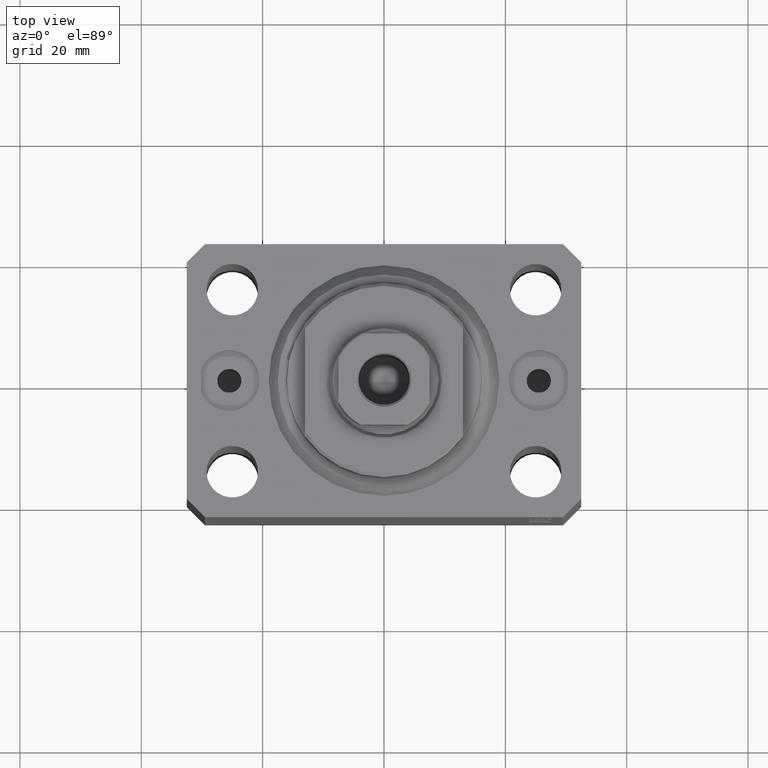
[diagram: clean part render]
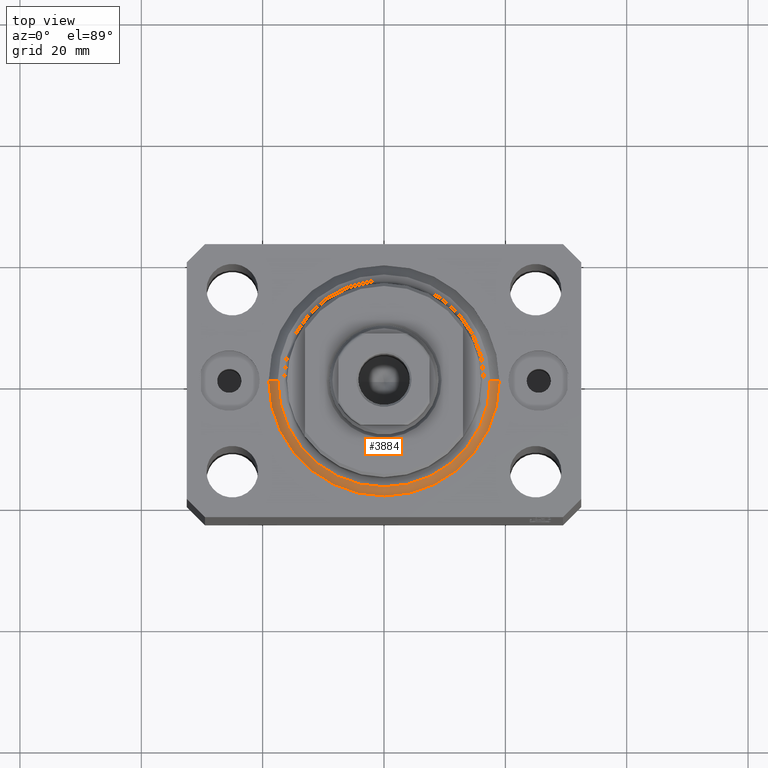
[diagram: same view with one face highlighted and labeled with its STEP entity id]
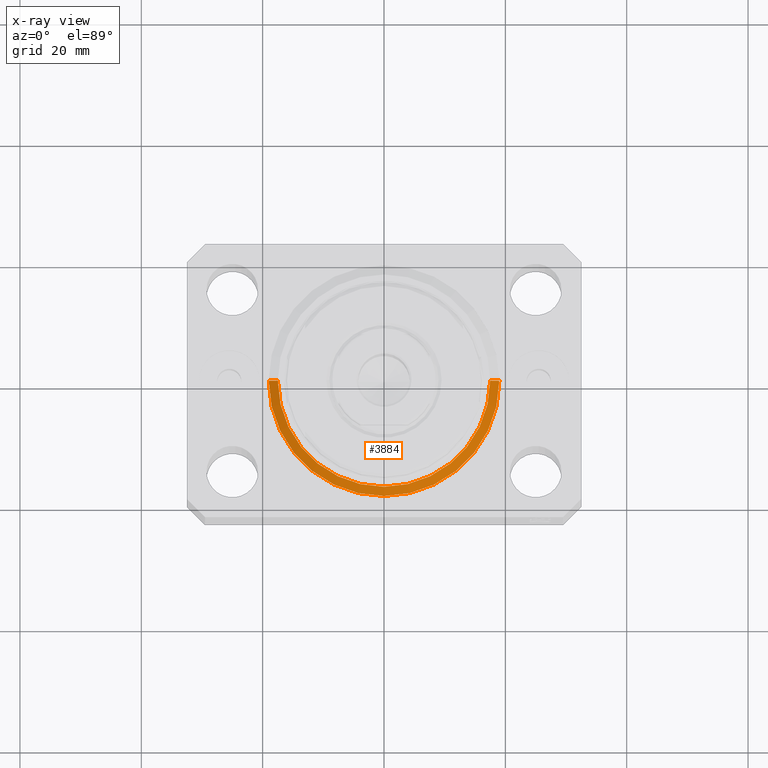
[diagram: x-ray of the same camera — body ghosted, the highlighted face saturated]
A machine part, top view. The second image highlights one B-rep face of the part: STEP entity #3884.
The next image is the same camera in x-ray: the body ghosted, the highlighted face saturated — about 0% of this face is hidden behind the body in this view.
In plain terms, the highlighted conical surface has half-angle 45 deg.
Its self-contained STEP definition (entity closure, byte-faithful):
#1218 = DIRECTION ( 'NONE',  ( 1.000000000000000000, 0.000000000000000000, 0.000000000000000000 ) ) ;
#2388 = DIRECTION ( 'NONE',  ( -0.000000000000000000, -0.000000000000000000, -1.000000000000000000 ) ) ;
#2813 = CARTESIAN_POINT ( 'NONE',  ( 19.00000000000000000, 2.326828918379970970E-15, 1.500000000000004885 ) ) ;
#3884 = ADVANCED_FACE ( 'NONE', ( #42203 ), #15609, .T. ) ;
#4350 = DIRECTION ( 'NONE',  ( -0.000000000000000000, -0.000000000000000000, 1.000000000000000000 ) ) ;
#4421 = DIRECTION ( 'NONE',  ( -0.000000000000000000, -0.000000000000000000, 1.000000000000000000 ) ) ;
#4581 = CIRCLE ( 'NONE', #21120, 19.00000000000000000 ) ;
#5244 = ORIENTED_EDGE ( 'NONE', *, *, #15641, .T. ) ;
#5757 = CARTESIAN_POINT ( 'NONE',  ( 0.000000000000000000, 0.000000000000000000, 0.000000000000000000 ) ) ;
#5886 = ORIENTED_EDGE ( 'NONE', *, *, #23751, .F. ) ;
#7344 = CARTESIAN_POINT ( 'NONE',  ( -19.00000000000000000, 2.326828918379970970E-15, 1.500000000000004885 ) ) ;
#10420 = VECTOR ( 'NONE', #44233, 1000.000000000000000 ) ;
#13573 = CIRCLE ( 'NONE', #22178, 17.49999999999999289 ) ;
#15609 = CONICAL_SURFACE ( 'NONE', #40684, 19.00000000000000000, 0.7853981633974492782 ) ;
#15641 = EDGE_CURVE ( 'NONE', #39074, #15762, #33384, .T. ) ;
#15762 = VERTEX_POINT ( 'NONE', #2813 ) ;
#16301 = EDGE_CURVE ( 'NONE', #33120, #25286, #27820, .T. ) ;
#17633 = CARTESIAN_POINT ( 'NONE',  ( 0.000000000000000000, 0.000000000000000000, 1.500000000000004885 ) ) ;
#18161 = DIRECTION ( 'NONE',  ( 1.000000000000000000, 0.000000000000000000, 0.000000000000000000 ) ) ;
#19271 = DIRECTION ( 'NONE',  ( 1.000000000000000000, 0.000000000000000000, 0.000000000000000000 ) ) ;
#21120 = AXIS2_PLACEMENT_3D ( 'NONE', #17633, #4350, #1218 ) ;
#22178 = AXIS2_PLACEMENT_3D ( 'NONE', #5757, #2388, #19271 ) ;
#23751 = EDGE_CURVE ( 'NONE', #39074, #33120, #13573, .T. ) ;
#25286 = VERTEX_POINT ( 'NONE', #33583 ) ;
#25783 = DIRECTION ( 'NONE',  ( 0.7071067811865483499, 0.000000000000000000, 0.7071067811865467956 ) ) ;
#26533 = EDGE_LOOP ( 'NONE', ( #32728, #5886, #5244, #33973 ) ) ;
#26656 = CARTESIAN_POINT ( 'NONE',  ( 19.00000000000000000, 0.000000000000000000, 1.500000000000004885 ) ) ;
#26911 = VECTOR ( 'NONE', #25783, 1000.000000000000000 ) ;
#27820 = LINE ( 'NONE', #7344, #10420 ) ;
#29202 = CARTESIAN_POINT ( 'NONE',  ( 17.49999999999999289, 0.000000000000000000, 0.000000000000000000 ) ) ;
#29497 = EDGE_CURVE ( 'NONE', #25286, #15762, #4581, .T. ) ;
#32728 = ORIENTED_EDGE ( 'NONE', *, *, #16301, .F. ) ;
#33120 = VERTEX_POINT ( 'NONE', #42917 ) ;
#33384 = LINE ( 'NONE', #26656, #26911 ) ;
#33583 = CARTESIAN_POINT ( 'NONE',  ( -19.00000000000000000, 0.000000000000000000, 1.500000000000004885 ) ) ;
#33973 = ORIENTED_EDGE ( 'NONE', *, *, #29497, .F. ) ;
#35230 = CARTESIAN_POINT ( 'NONE',  ( 0.000000000000000000, 0.000000000000000000, 1.500000000000004885 ) ) ;
#39074 = VERTEX_POINT ( 'NONE', #29202 ) ;
#40684 = AXIS2_PLACEMENT_3D ( 'NONE', #35230, #4421, #18161 ) ;
#42203 = FACE_OUTER_BOUND ( 'NONE', #26533, .T. ) ;
#42917 = CARTESIAN_POINT ( 'NONE',  ( -17.49999999999999289, 2.234980408443919215E-15, 0.000000000000000000 ) ) ;
#44233 = DIRECTION ( 'NONE',  ( -0.7071067811865483499, 8.659560562354943952E-17, 0.7071067811865467956 ) ) ;